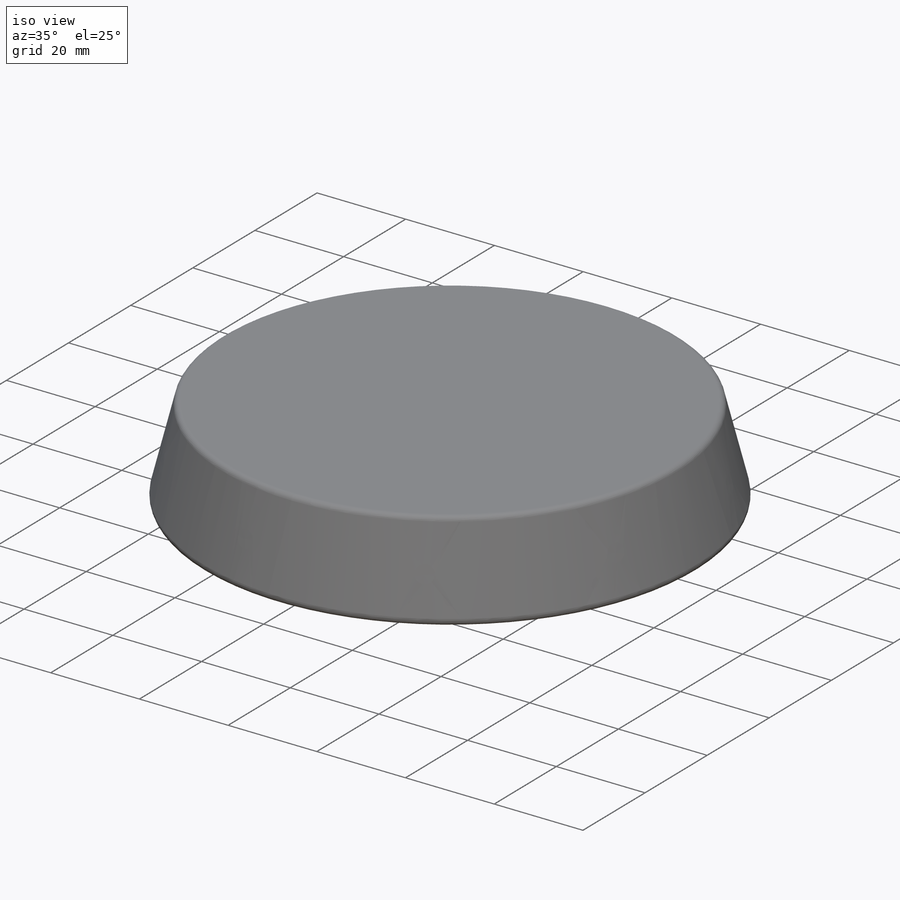
[diagram: iso view]
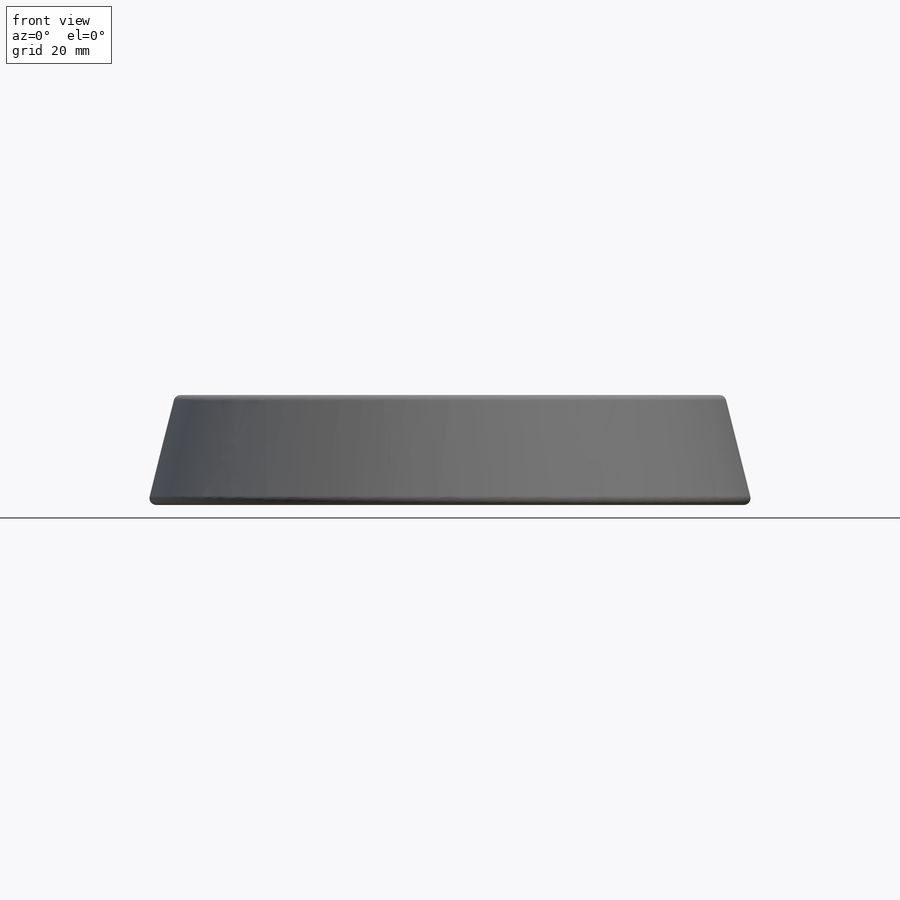
[diagram: front view]
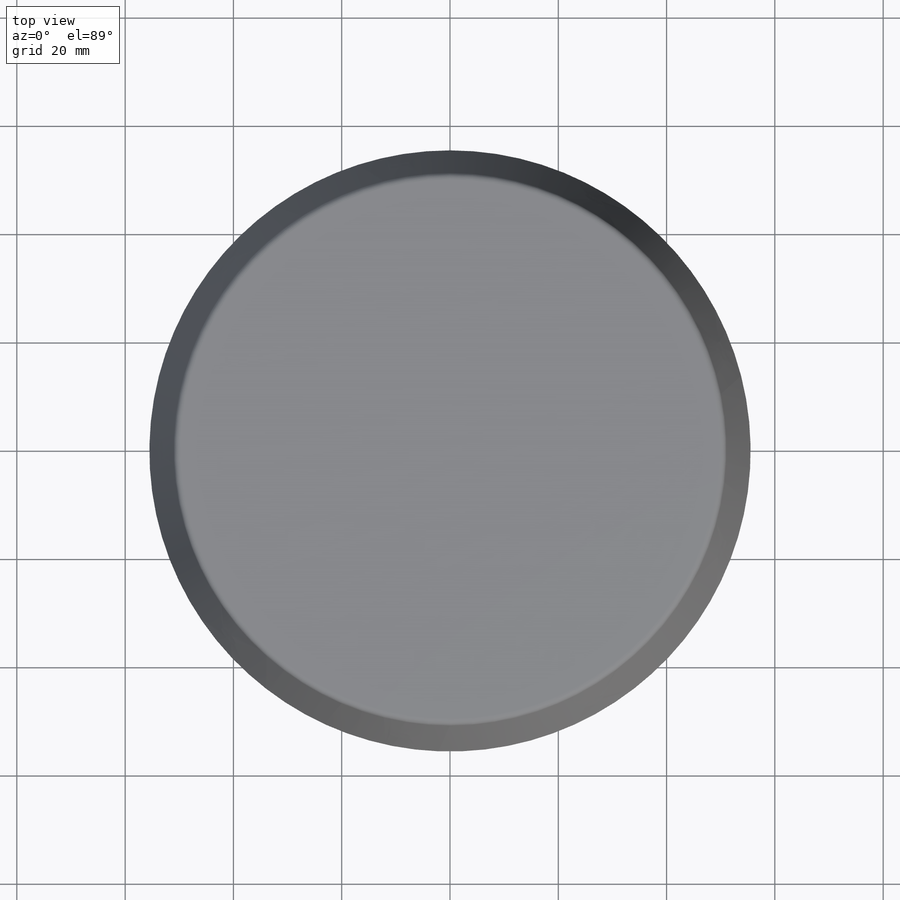
[diagram: top view]
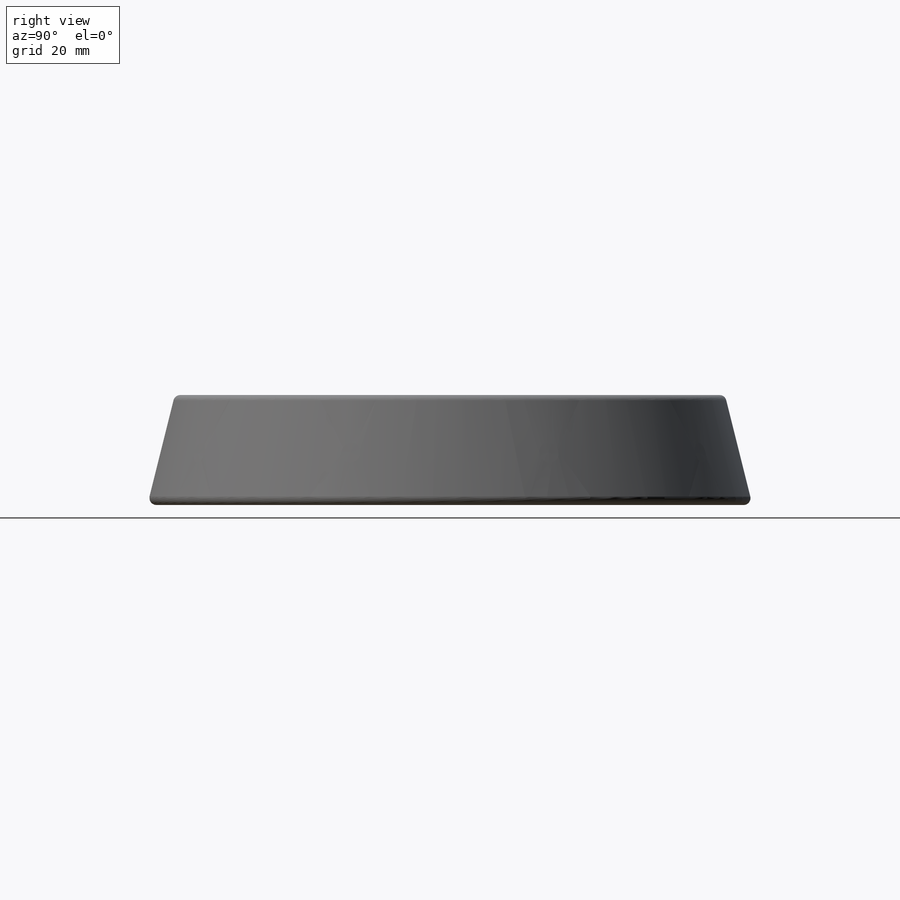
[diagram: right view]
SOLIDWORKS PART (.sldprt)
format: sldprt  version: not decoded by parser v0  size: 233,984 bytes
history: native  units: mm
features: sketch x2, material x1, revolve x1, fillet x1, plane x1, pattern_circular x1 (+12 scaffold rows collapsed)
feature tree (19):
  scaffold x12  (default folders/planes/origin — collapsed)
  material  "Material <not specified>"
  sketch  "Sketch3"  dims[c1.D1=~29.752661mm c2.D1=256.0deg c3.D1=~25.109893mm c4.D1=256.0deg c5.D1=2.54mm]
  revolve  "Revolve1"  Angle=360deg
  fillet  "Fillet1"  Radius=1.27mm
  plane  "Plane1"
  sketch  "Sketch5"  dims[D1=3.81mm]
  pattern_circular  "CirPattern1"  Count=9 Angle=360deg
decode coverage: 5 of 5 modeling features carry decoded parameters
note: ~ marks probable driven/reference dimensions
note: suppression state not decoded; provenance and decode notes live in map.json
